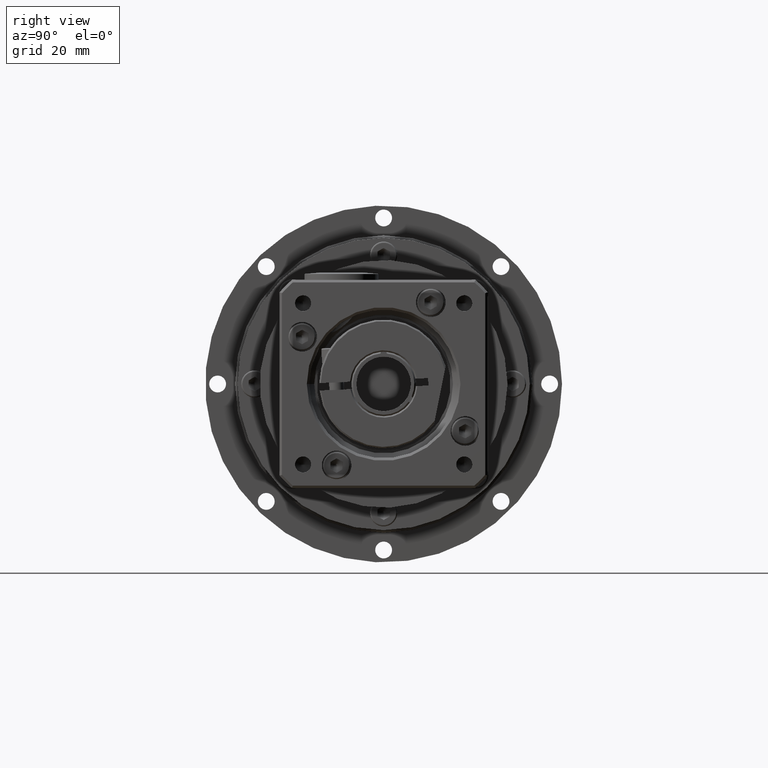
[diagram: clean part render]
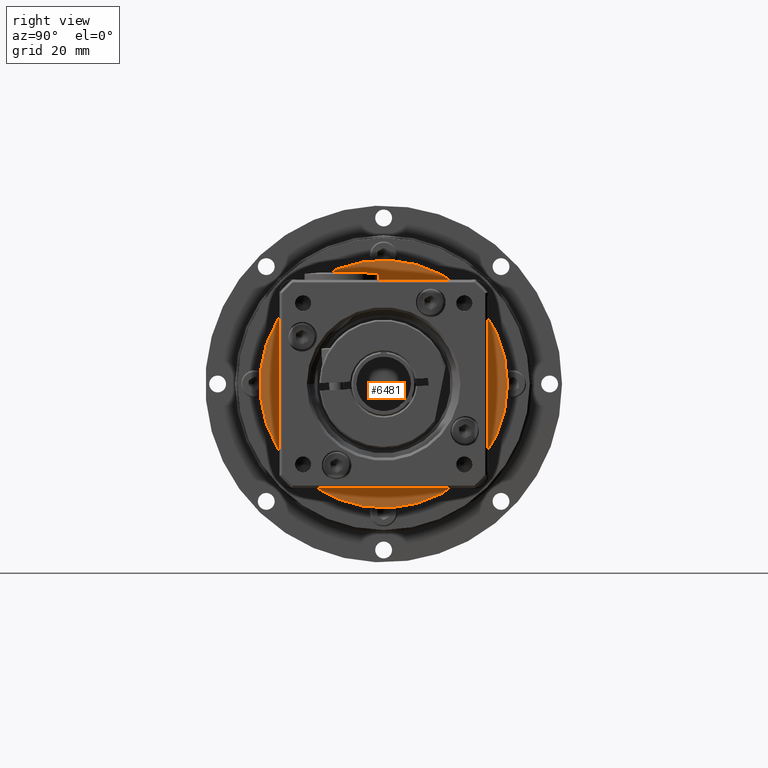
[diagram: same view with one face highlighted and labeled with its STEP entity id]
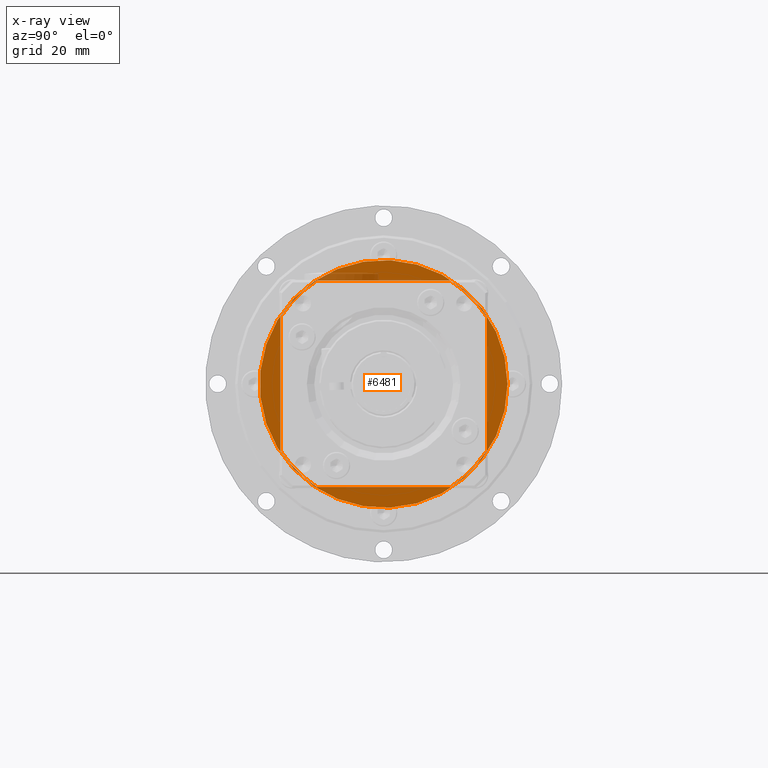
[diagram: x-ray of the same camera — body ghosted, the highlighted face saturated]
A machine part, right view. The second image highlights one B-rep face of the part: STEP entity #6481.
The next image is the same camera in x-ray: the body ghosted, the highlighted face saturated — about 14% of this face is hidden behind the body in this view.
In plain terms, the highlighted planar face has unit normal (1, -0, 0).
Its self-contained STEP definition (entity closure, byte-faithful):
#285=LINE('',#10427,#563);
#286=LINE('',#10445,#564);
#287=LINE('',#10459,#565);
#290=LINE('',#10479,#568);
#563=VECTOR('',#8368,27.0111088258146);
#564=VECTOR('',#8375,27.0111088258146);
#565=VECTOR('',#8382,27.0111088258146);
#568=VECTOR('',#8393,27.0111088258146);
#1468=FACE_BOUND('',#2459,.T.);
#1829=FACE_OUTER_BOUND('',#2458,.T.);
#2458=EDGE_LOOP('',(#5306));
#2459=EDGE_LOOP('',(#5307,#5308,#5309,#5310,#5311,#5312,#5313,#5314));
#2898=CIRCLE('',#7060,24.8000000000002);
#2899=CIRCLE('',#7063,24.8000000000002);
#2901=CIRCLE('',#7067,24.8000000000002);
#2903=CIRCLE('',#7071,24.8000000000002);
#2967=CIRCLE('',#7196,25.);
#3355=VERTEX_POINT('',#10425);
#3356=VERTEX_POINT('',#10426);
#3357=VERTEX_POINT('',#10437);
#3358=VERTEX_POINT('',#10444);
#3359=VERTEX_POINT('',#10451);
#3360=VERTEX_POINT('',#10458);
#3363=VERTEX_POINT('',#10469);
#3365=VERTEX_POINT('',#10478);
#3429=VERTEX_POINT('',#10677);
#4028=EDGE_CURVE('',#3355,#3356,#285,.T.);
#4031=EDGE_CURVE('',#3357,#3355,#2898,.T.);
#4033=EDGE_CURVE('',#3358,#3357,#286,.T.);
#4035=EDGE_CURVE('',#3359,#3358,#2899,.T.);
#4037=EDGE_CURVE('',#3360,#3359,#287,.T.);
#4041=EDGE_CURVE('',#3363,#3360,#2901,.T.);
#4044=EDGE_CURVE('',#3365,#3363,#290,.T.);
#4047=EDGE_CURVE('',#3356,#3365,#2903,.T.);
#4114=EDGE_CURVE('',#3429,#3429,#2967,.T.);
#5306=ORIENTED_EDGE('',*,*,#4114,.T.);
#5307=ORIENTED_EDGE('',*,*,#4028,.T.);
#5308=ORIENTED_EDGE('',*,*,#4047,.T.);
#5309=ORIENTED_EDGE('',*,*,#4044,.T.);
#5310=ORIENTED_EDGE('',*,*,#4041,.T.);
#5311=ORIENTED_EDGE('',*,*,#4037,.T.);
#5312=ORIENTED_EDGE('',*,*,#4035,.T.);
#5313=ORIENTED_EDGE('',*,*,#4033,.T.);
#5314=ORIENTED_EDGE('',*,*,#4031,.T.);
#6122=PLANE('',#7195);
#6481=ADVANCED_FACE('',(#1829,#1468),#6122,.T.);
#7060=AXIS2_PLACEMENT_3D('',#10438,#8371,#8372);
#7063=AXIS2_PLACEMENT_3D('',#10452,#8378,#8379);
#7067=AXIS2_PLACEMENT_3D('',#10470,#8388,#8389);
#7071=AXIS2_PLACEMENT_3D('',#10486,#8398,#8399);
#7195=AXIS2_PLACEMENT_3D('',#10676,#8649,#8650);
#7196=AXIS2_PLACEMENT_3D('',#10678,#8651,#8652);
#8368=DIRECTION('',(-1.69222471967325E-15,-1.,1.9755835388863E-15));
#8371=DIRECTION('center_axis',(-1.,1.69222471967324E-15,-1.46332732565451E-15));
#8372=DIRECTION('ref_axis',(2.25267977437556E-15,5.11309744543894E-16,-1.));
#8375=DIRECTION('',(1.46332732565451E-15,1.44899400441952E-16,-1.));
#8378=DIRECTION('center_axis',(-1.,1.69222471967324E-15,-1.46332732565451E-15));
#8379=DIRECTION('ref_axis',(-2.25267977437556E-15,-5.11309744543894E-16,
1.));
#8382=DIRECTION('',(1.69222471967324E-15,1.,3.20967408028371E-15));
#8388=DIRECTION('center_axis',(-1.,1.69222471967324E-15,-1.46332732565451E-15));
#8389=DIRECTION('ref_axis',(-2.25267977437556E-15,-5.11309744543894E-16,
1.));
#8393=DIRECTION('',(-1.46332732565451E-15,-1.40639771941971E-15,1.));
#8398=DIRECTION('center_axis',(-1.,1.69222471967324E-15,-1.46332732565451E-15));
#8399=DIRECTION('ref_axis',(2.25267977437556E-15,5.11309744543894E-16,-1.));
#8649=DIRECTION('center_axis',(1.,-1.69222471967324E-15,1.46332732565451E-15));
#8650=DIRECTION('ref_axis',(1.4210854715202E-15,6.21724893790088E-16,-1.));
#8651=DIRECTION('center_axis',(1.,-1.69222471967324E-15,1.46332732565451E-15));
#8652=DIRECTION('ref_axis',(1.46332732565451E-15,6.41580805577278E-16,-1.));
#10425=CARTESIAN_POINT('',(22.3264486176499,17.9106815013656,-82.1851948421755));
#10426=CARTESIAN_POINT('',(22.32644861765,-9.10042732444903,-82.1851948421755));
#10427=CARTESIAN_POINT('',(22.3264486176502,9.65512708845813,-82.1851948421757));
#10437=CARTESIAN_POINT('',(22.3264486176499,25.2051270884583,-74.8907492550828));
#10438=CARTESIAN_POINT('Origin',(22.3264486176501,4.40512708845825,-61.3851948421755));
#10444=CARTESIAN_POINT('',(22.3264486176498,25.2051270884582,-47.8796404292682));
#10445=CARTESIAN_POINT('',(22.3264486176501,25.2051270884585,-56.1351948421756));
#10451=CARTESIAN_POINT('',(22.3264486176498,17.9106815013655,-40.5851948421755));
#10452=CARTESIAN_POINT('Origin',(22.3264486176501,4.40512708845825,-61.3851948421755));
#10458=CARTESIAN_POINT('',(22.3264486176499,-9.10042732444907,-40.5851948421755));
#10459=CARTESIAN_POINT('',(22.3264486176501,-0.844872911541897,-40.5851948421753));
#10469=CARTESIAN_POINT('',(22.3264486176499,-16.3948729115418,-47.8796404292682));
#10470=CARTESIAN_POINT('Origin',(22.3264486176501,4.40512708845825,-61.3851948421755));
#10478=CARTESIAN_POINT('',(22.3264486176499,-16.3948729115417,-74.8907492550828));
#10479=CARTESIAN_POINT('',(22.3264486176501,-16.3948729115419,-66.6351948421756));
#10486=CARTESIAN_POINT('Origin',(22.3264486176501,4.40512708845825,-61.3851948421755));
#10676=CARTESIAN_POINT('Origin',(22.3264486176501,4.40512708845804,-61.3851948421757));
#10677=CARTESIAN_POINT('',(22.3264486176502,29.405127088458,-61.3851948421757));
#10678=CARTESIAN_POINT('Origin',(22.3264486176501,4.40512708845803,-61.3851948421757));